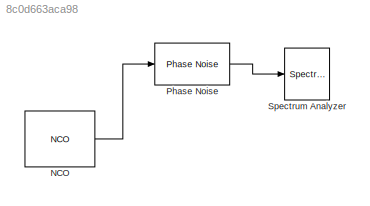
MODEL slx_8c0d663aca98
KIND model
CONFIG AbsTol = auto
CONFIG FixedStep = auto
CONFIG MaxStep = auto
CONFIG MinStep = auto
CONFIG RelTol = 1e-3
CONFIG SampleTimeConstraint = Unconstrained
CONFIG Solver = VariableStepAuto
CONFIG SolverMode = Auto
CONFIG SolverName = VariableStepAuto
CONFIG StartTime = 0.0
CONFIG StopTime = 2000
BLOCK [Reference] NCO  REF=dspsigops/NCO
  Ports = [0, 1]
  SourceBlock = dspsigops/NCO
  SourceType = NCO
BLOCK [Reference] Phase Noise  REF=commrflib2/Phase
Noise
  Ports = [1, 1]
  SourceBlock = commrflib2/Phase\nNoise
  SourceType = Phase Noise
BLOCK [SpectrumAnalyzer] Spectrum Analyzer
  Ports = [1]
  ScopeSpecificationString = spbscopes.SpectrumAnalyzerBlockCfg('CurrentConfiguration', extmgr.ConfigurationSet(extmgr.Configuration('Core','General UI',true),extmgr.Configuration('Core','Source UI',true),extmgr.Configuration('Sources','WiredSimulink',true),extmgr.Configuration('Visuals','Spectrum',true,'AxesProperties',struct('Color',[0 0 0],'XColor',[0.686274509803922 0.686274509803922 0.686274509803922],'YColor',[0.6862745...<+1193ch>
LINE NCO:1 -> Phase Noise:1
LINE Phase Noise:1 -> Spectrum Analyzer:1
